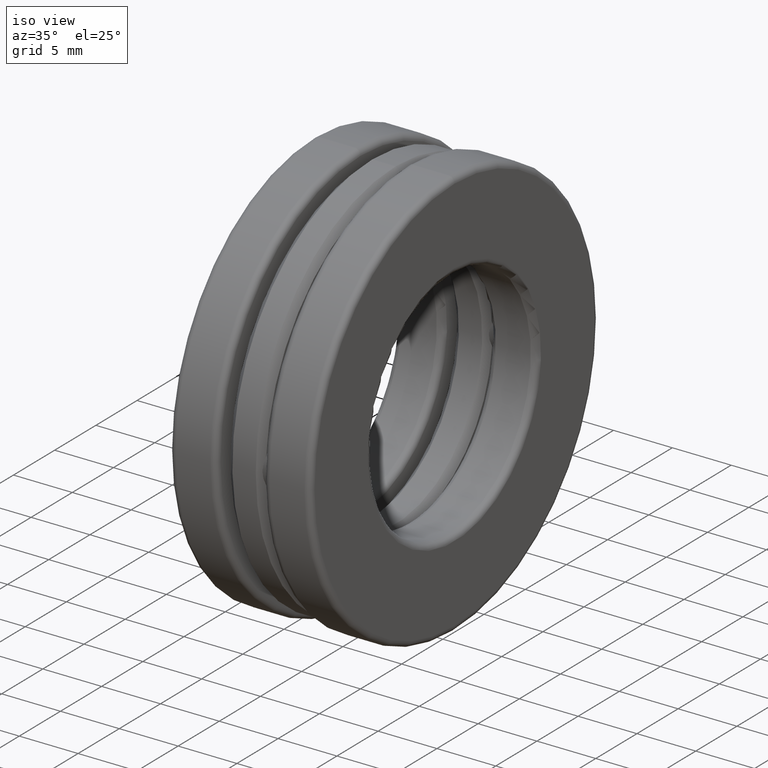
[diagram: clean part render]
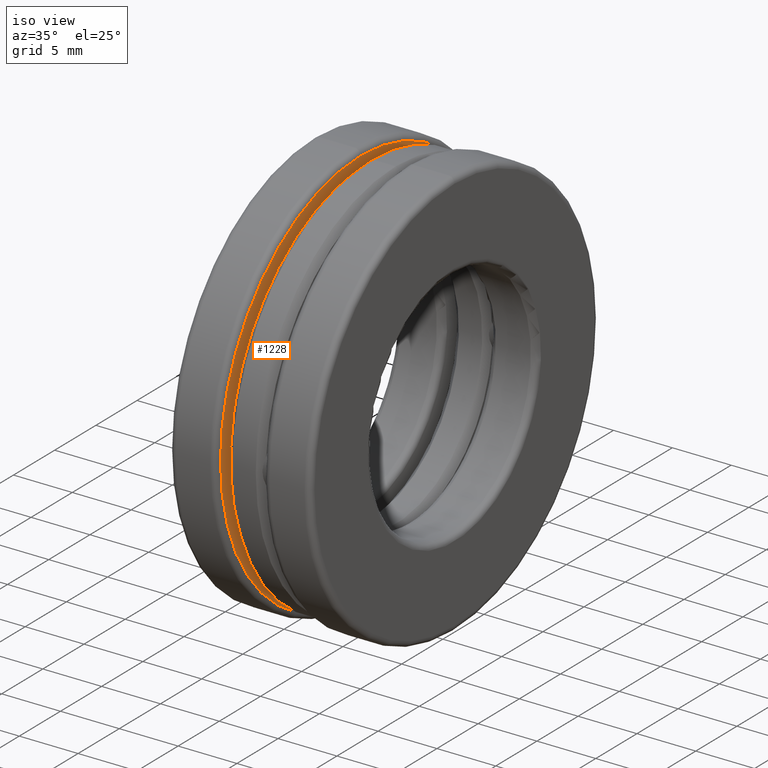
[diagram: same view with one face highlighted and labeled with its STEP entity id]
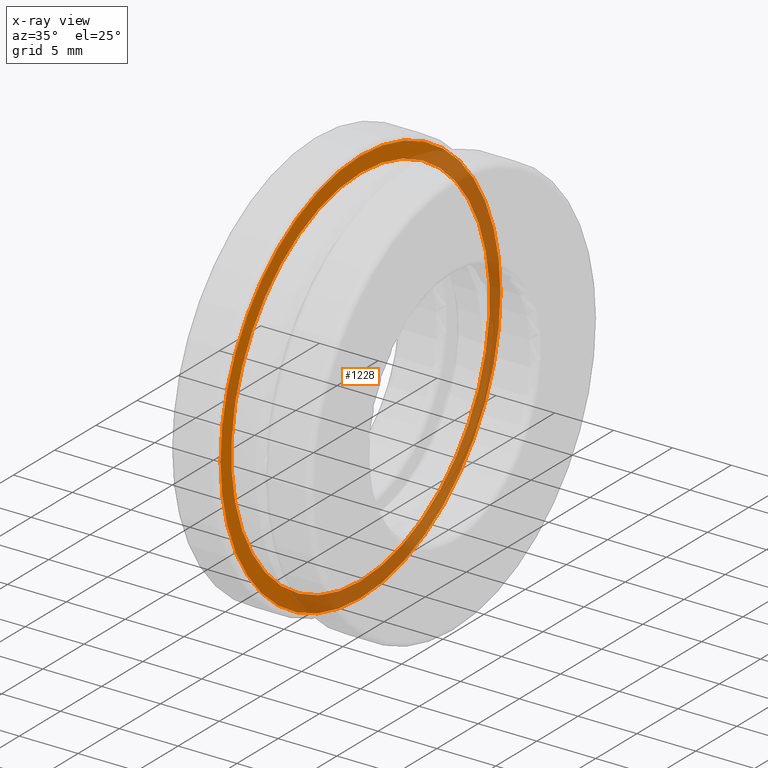
[diagram: x-ray of the same camera — body ghosted, the highlighted face saturated]
A machine part, iso view. The second image highlights one B-rep face of the part: STEP entity #1228.
The next image is the same camera in x-ray: the body ghosted, the highlighted face saturated — about 50% of this face is hidden behind the body in this view.
In plain terms, the highlighted planar face has unit normal (1, 0, 0).
Its self-contained STEP definition (entity closure, byte-faithful):
#16 = EDGE_LOOP ( 'NONE', ( #920 ) ) ;
#24 = DIRECTION ( 'NONE',  ( 0.0000000000000000000, 0.0000000000000000000, 1.000000000000000000 ) ) ;
#77 = PLANE ( 'NONE',  #1073 ) ;
#173 = FACE_BOUND ( 'NONE', #641, .T. ) ;
#322 = DIRECTION ( 'NONE',  ( 0.0000000000000000000, 0.0000000000000000000, 1.000000000000000000 ) ) ;
#386 = CARTESIAN_POINT ( 'NONE',  ( -0.07866824000000002800, 0.0000000000000000000, 0.6690000000000000400 ) ) ;
#452 = AXIS2_PLACEMENT_3D ( 'NONE', #1063, #775, #322 ) ;
#516 = EDGE_CURVE ( 'NONE', #888, #888, #820, .T. ) ;
#610 = DIRECTION ( 'NONE',  ( -1.000000000000000000, -0.0000000000000000000, -0.0000000000000000000 ) ) ;
#641 = EDGE_LOOP ( 'NONE', ( #1108 ) ) ;
#775 = DIRECTION ( 'NONE',  ( -1.000000000000000000, -0.0000000000000000000, -0.0000000000000000000 ) ) ;
#783 = CARTESIAN_POINT ( 'NONE',  ( -0.07866823999999994500, -3.154251569605156800E-017, 0.0000000000000000000 ) ) ;
#793 = AXIS2_PLACEMENT_3D ( 'NONE', #1185, #610, #24 ) ;
#820 = CIRCLE ( 'NONE', #793, 0.6690000000000000400 ) ;
#869 = FACE_OUTER_BOUND ( 'NONE', #16, .T. ) ;
#885 = DIRECTION ( 'NONE',  ( 1.000000000000000000, 0.0000000000000000000, 0.0000000000000000000 ) ) ;
#888 = VERTEX_POINT ( 'NONE', #386 ) ;
#920 = ORIENTED_EDGE ( 'NONE', *, *, #516, .F. ) ;
#987 = VERTEX_POINT ( 'NONE', #1253 ) ;
#1063 = CARTESIAN_POINT ( 'NONE',  ( -0.07866824000000001400, 0.0000000000000000000, 0.0000000000000000000 ) ) ;
#1073 = AXIS2_PLACEMENT_3D ( 'NONE', #783, #885, #1166 ) ;
#1108 = ORIENTED_EDGE ( 'NONE', *, *, #1232, .T. ) ;
#1166 = DIRECTION ( 'NONE',  ( 0.0000000000000000000, 0.0000000000000000000, -1.000000000000000000 ) ) ;
#1180 = CIRCLE ( 'NONE', #452, 0.6174179592433880500 ) ;
#1185 = CARTESIAN_POINT ( 'NONE',  ( -0.07866824000000002800, 0.0000000000000000000, 0.0000000000000000000 ) ) ;
#1228 = ADVANCED_FACE ( 'NONE', ( #173, #869 ), #77, .T. ) ;
#1232 = EDGE_CURVE ( 'NONE', #987, #987, #1180, .T. ) ;
#1253 = CARTESIAN_POINT ( 'NONE',  ( -0.07866824000000001400, 0.0000000000000000000, 0.6174179592433880500 ) ) ;